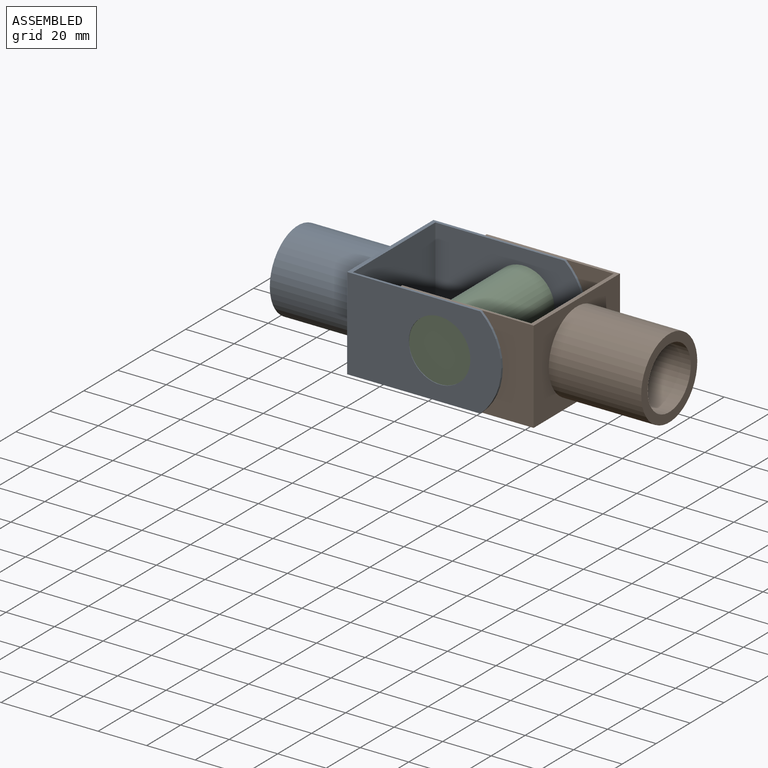
[diagram: assembled view]
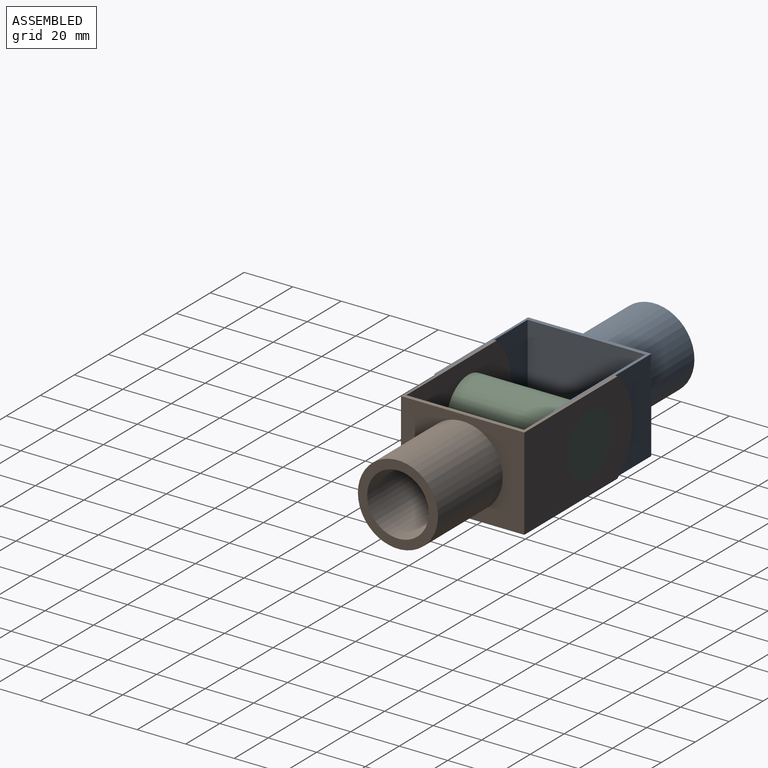
[diagram: assembled view, second angle]
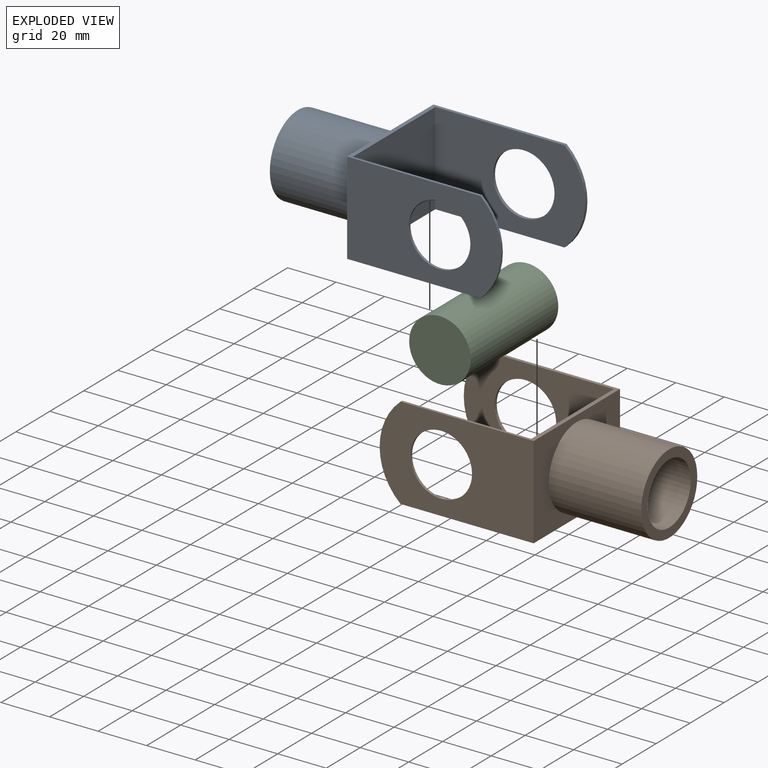
[diagram: exploded view]
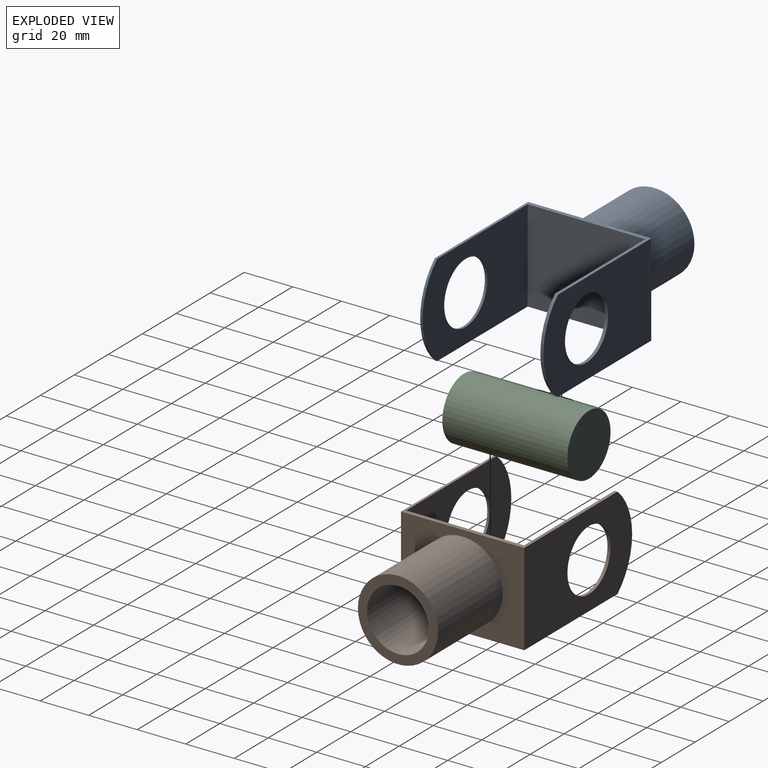
[diagram: exploded view, second angle]
ASSEMBLY  parts=3 mates=2
PART A: 16 faces, bbox 101.6x50.8x38.1 mm
  f0: plane 63.5x38.1mm, normal (0,-1,0), area 1812.1mm2, adj f2,f3,f4,f14,f15
  f1: plane 63.5x38.1mm, normal (0,1,0), area 1812.1mm2, adj f4,f5,f6,f14,f15
  f2: cylinder r=12.7mm len=25.4mm, axis (0,1,0), area 79.4mm2, adj f0,f8
  f3: cylinder r=25.4mm len=38.1mm, axis (0,1,0), area 42.9mm2, adj f0,f8,f14,f15
  f4: plane 50.8x38.1mm, normal (-1,0,0), area 1079.1mm2, adj f0,f1,f11,f14,f15
  f5: cylinder r=12.7mm len=25.4mm, axis (0,1,0), area 101mm2, adj f1,f9
  f6: cylinder r=25.4mm len=38.1mm, axis (0,1,0), area 54.5mm2, adj f1,f9,f14,f15
  f7: plane 48.54x38.1mm, normal (1,0,0), area 1849.3mm2, adj f8,f9,f14,f15
  f8: plane 61.82x38.1mm, normal (0,1,0), area 1748mm2, adj f2,f3,f7,f14,f15
  f9: plane 61.82x38.1mm, normal (0,-1,0), area 1748mm2, adj f5,f6,f7,f14,f15
  f10: cylinder r=12.7mm len=38.1mm, axis (1,0,0), area 3040.2mm2, adj f12,f13
  f11: cylinder r=16.51mm len=38.1mm, axis (1,0,0), area 3952.3mm2, adj f4,f12
  f12: plane 33.02x33.02mm, normal (-1,0,0), area 349.6mm2, adj f10,f11
  f13: plane 25.4x25.4mm, normal (-1,0,0), area 506.7mm2, adj f10
  f14: plane 54.9x50.8mm, normal (0,0,-1), area 205.8mm2, adj f0,f1,f3,f4,f6,f7,f8,f9
  f15: plane 54.9x50.8mm, normal (0,0,1), area 205.8mm2, adj f0,f1,f3,f4,f6,f7,f8,f9
PART B: same geometry as A
PART C: 3 faces, bbox 25.4x25.4x51.6 mm
  f0: cylinder r=12.7mm len=51.56mm, axis (0,0,-1), area 4114.5mm2, adj f1,f2
  f1: plane 25.4x25.4mm, normal (0,0,1), area 506.7mm2, adj f0
  f2: plane 25.4x25.4mm, normal (0,0,-1), area 506.7mm2, adj f0
PLACE A t=(-13.27,12.75,-6.29)mm
PLACE B rot(axis=(0,1,0),180deg) t=(11.94,13.75,13.5)mm
PLACE C rot(axis=(-1,0,0),90deg) t=(-0.67,-37.81,3.61)mm
MATE fastened C.f0 <-> B.f2  axis (0,-1,0) through (-0.67,13.75,3.61)mm
MATE fastened B.f2 <-> A.f2  axis (0,-1,0) through (-0.67,-37.05,3.61)mm
